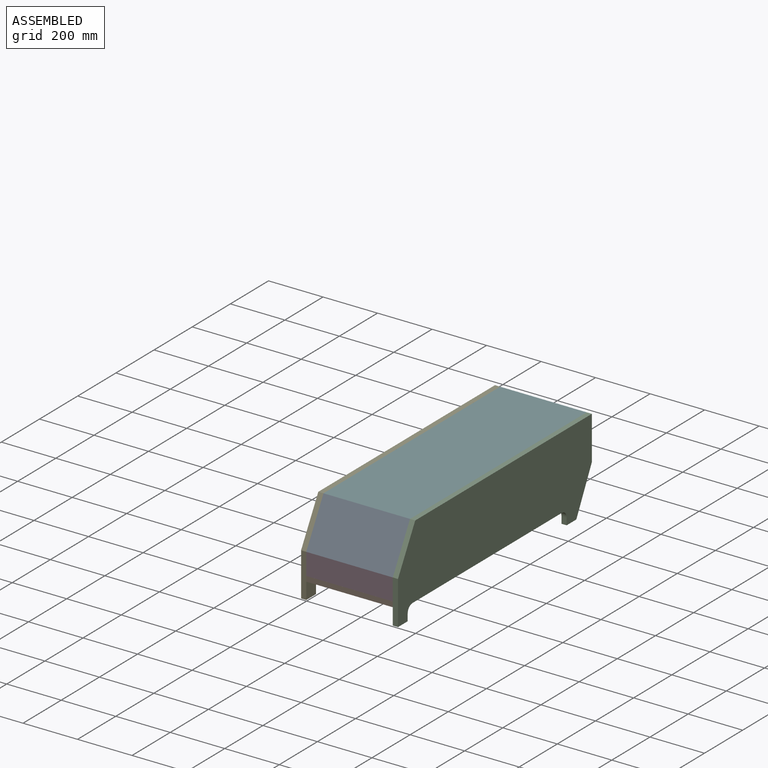
[diagram: assembled view]
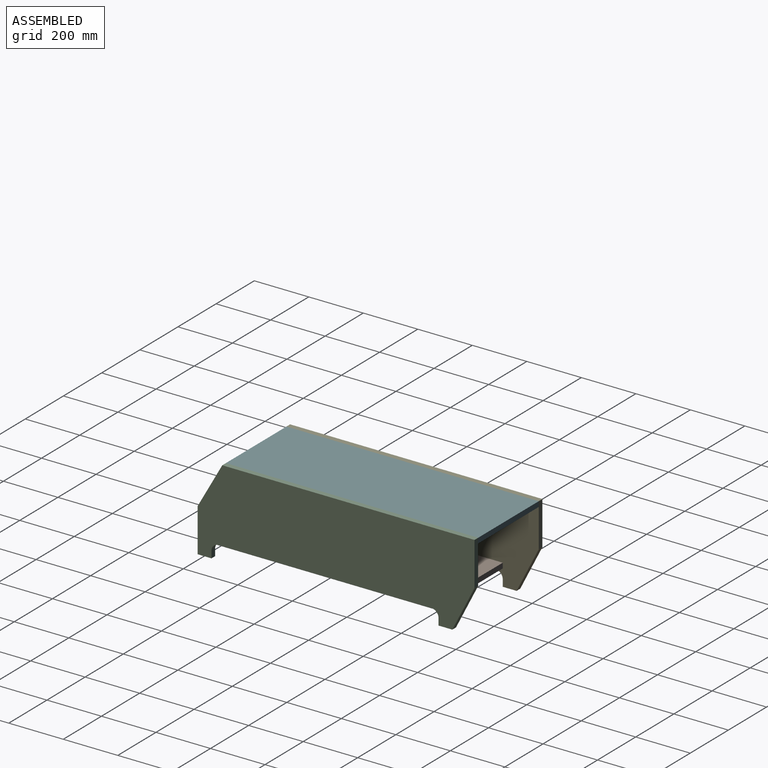
[diagram: assembled view, second angle]
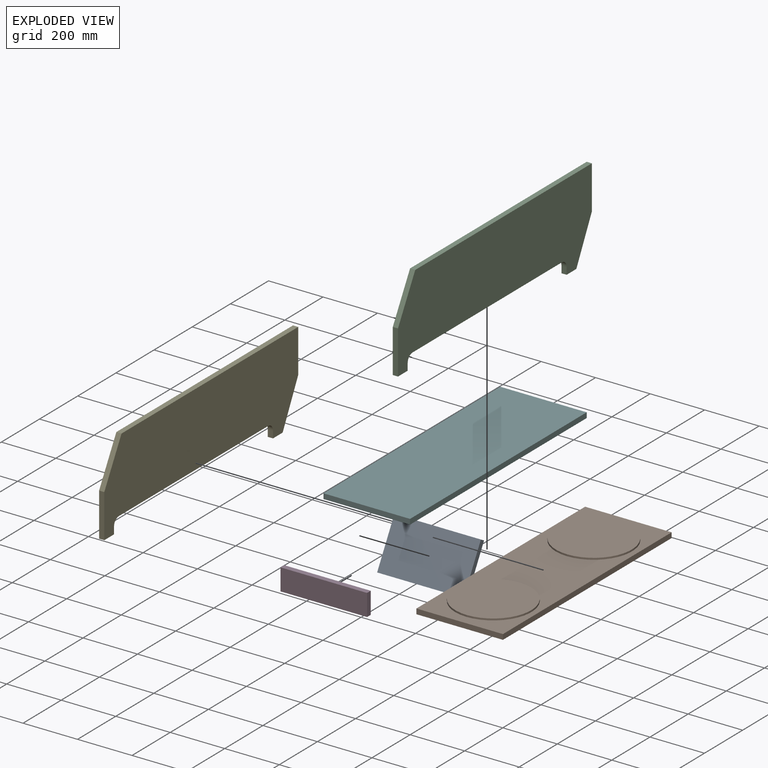
[diagram: exploded view]
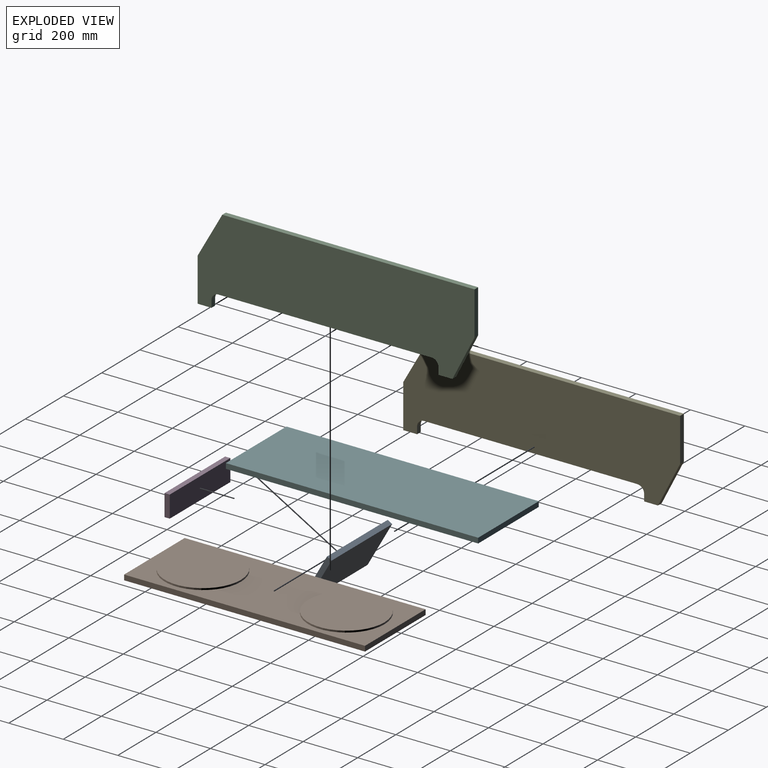
[diagram: exploded view, second angle]
ASSEMBLY  parts=6 mates=4
PART A: 6 faces, bbox 317.5x19.1x183.4 mm
  f0: plane 317.5x19.05mm, normal (0,0,1), area 6048.4mm2, adj f1,f3,f4,f5
  f1: plane 183.41x19.05mm, normal (-1,0,0), area 3494mm2, adj f0,f2,f4,f5
  f2: plane 317.5x19.05mm, normal (0,0,-1), area 6048.4mm2, adj f1,f3,f4,f5
  f3: plane 183.41x19.05mm, normal (1,0,0), area 3494mm2, adj f0,f2,f4,f5
  f4: plane 317.5x183.41mm, normal (0,-1,0), area 58233.8mm2, adj f0,f1,f2,f3
  f5: plane 317.5x183.41mm, normal (0,1,0), area 58233.8mm2, adj f0,f1,f2,f3
PART B: 10 faces, bbox 883.8x317.5x25.4 mm
  f0: plane 317.5x19.05mm, normal (-1,0,0), area 6048.4mm2, adj f1,f3,f4,f5
  f1: plane 883.79x19.05mm, normal (0,-1,0), area 16836.3mm2, adj f0,f2,f4,f5
  f2: plane 317.5x19.05mm, normal (1,0,0), area 6048.4mm2, adj f1,f3,f4,f5
  f3: plane 883.79x19.05mm, normal (0,1,0), area 16836.3mm2, adj f0,f2,f4,f5
  f4: plane 883.79x317.5mm, normal (0,0,1), area 157981.1mm2, adj f0,f1,f2,f3,f6,f8
  f5: plane 883.79x317.5mm, normal (0,0,-1), area 280604.3mm2, adj f0,f1,f2,f3
  f6: cylinder r=139.7mm len=279.4mm, axis (0,0,-1), area 5573.8mm2, adj f4,f7
  f7: plane 279.4x279.4mm, normal (0,0,1), area 61311.6mm2, adj f6
  f8: cylinder r=139.7mm len=279.4mm, axis (0,0,-1), area 5573.8mm2, adj f4,f9
  f9: plane 279.4x279.4mm, normal (0,0,1), area 61311.6mm2, adj f8
PART C: 14 faces, bbox 19.1x1016x319.2 mm
  f0: plane 25.4x19.05mm, normal (0,1,0), area 483.9mm2, adj f9,f10,f11,f13
  f1: plane 782.2x19.05mm, normal (0,0,-1), area 14900.8mm2, adj f10,f11,f12,f13
  f2: plane 25.4x19.05mm, normal (0,-1,0), area 483.9mm2, adj f3,f10,f11,f12
  f3: plane 50.8x19.05mm, normal (0,0,-1), area 967.7mm2, adj f2,f4,f10,f11
  f4: plane 159.6x81.4mm, normal (0,0.89,-0.45), area 3413mm2, adj f3,f5,f10,f11
  f5: plane 159.6x19.05mm, normal (0,1,0), area 3040.3mm2, adj f4,f6,f10,f11
  f6: plane 925.62x19.05mm, normal (0,0,1), area 17633.1mm2, adj f5,f7,f10,f11
  f7: plane 159.6x90.38mm, normal (0,-0.87,0.49), area 3494mm2, adj f6,f8,f10,f11
  f8: plane 159.53x19.05mm, normal (0,-1,0), area 3039mm2, adj f7,f9,f10,f11
  f9: plane 50.8x19.05mm, normal (0,0,-1), area 967.7mm2, adj f0,f8,f10,f11
  f10: plane 1016x319.2mm, normal (1,0,0), area 268553.2mm2, adj f0,f1,f2,f3,f4,f5,f6,f7
  f11: plane 1016x319.2mm, normal (-1,0,0), area 268553.2mm2, adj f0,f1,f2,f3,f4,f5,f6,f7
  f12: cylinder r=25.4mm len=25.4mm, axis (-1,0,0), area 760.1mm2, adj f1,f2,f10,f11
  f13: cylinder r=25.4mm len=25.4mm, axis (1,0,0), area 760.1mm2, adj f0,f1,f10,f11
PART D: 6 faces, bbox 317.5x19.1x79.8 mm
  f0: plane 317.5x19.05mm, normal (0,0,1), area 6048.4mm2, adj f1,f3,f4,f5
  f1: plane 79.76x19.05mm, normal (-1,0,0), area 1519.4mm2, adj f0,f2,f4,f5
  f2: plane 317.5x19.05mm, normal (0,0,-1), area 6048.4mm2, adj f1,f3,f4,f5
  f3: plane 79.76x19.05mm, normal (1,0,0), area 1519.4mm2, adj f0,f2,f4,f5
  f4: plane 317.5x79.76mm, normal (0,-1,0), area 25322.5mm2, adj f0,f1,f2,f3
  f5: plane 317.5x79.76mm, normal (0,1,0), area 25322.5mm2, adj f0,f1,f2,f3
PART E: same geometry as C
PART F: 6 faces, bbox 925.6x317.5x19.1 mm
  f0: plane 925.63x19.05mm, normal (0,1,0), area 17633.2mm2, adj f1,f3,f4,f5
  f1: plane 317.5x19.05mm, normal (-1,0,0), area 6048.4mm2, adj f0,f2,f4,f5
  f2: plane 925.63x19.05mm, normal (0,-1,0), area 17633.2mm2, adj f1,f3,f4,f5
  f3: plane 317.5x19.05mm, normal (1,0,0), area 6048.4mm2, adj f0,f2,f4,f5
  f4: plane 925.63x317.5mm, normal (0,0,1), area 293886.5mm2, adj f0,f1,f2,f3
  f5: plane 925.63x317.5mm, normal (0,0,-1), area 293886.5mm2, adj f0,f1,f2,f3
PLACE A rot(axis=(-1,0,0),29.5deg) t=(-423.24,-492.94,35.84)mm
PLACE B rot(axis=(0,0,-1),90deg) t=(-500.83,14.96,-88.11)mm
PLACE C t=(-193.14,204.59,-218.3)mm
PLACE D t=(-423.02,-510.02,-17.63)mm
PLACE E t=(-529.69,204.59,-218.3)mm
PLACE F rot(axis=(0,0,-1),90deg) t=(-324.31,23,151.25)mm
MATE fastened A.f4 <-> E.f7  axis (0,-0.87,0.49) through (-510.64,-483.88,90.5)mm
MATE fastened B.f1 <-> E.f10  axis (-1,0,0) through (-510.64,-529.07,-69.06)mm
MATE fastened F.f4 <-> C.f6  axis (0,0,1) through (-193.14,486.93,170.3)mm
MATE fastened D.f4 <-> E.f8  axis (0,-1,0) through (-510.64,-529.07,10.7)mm
